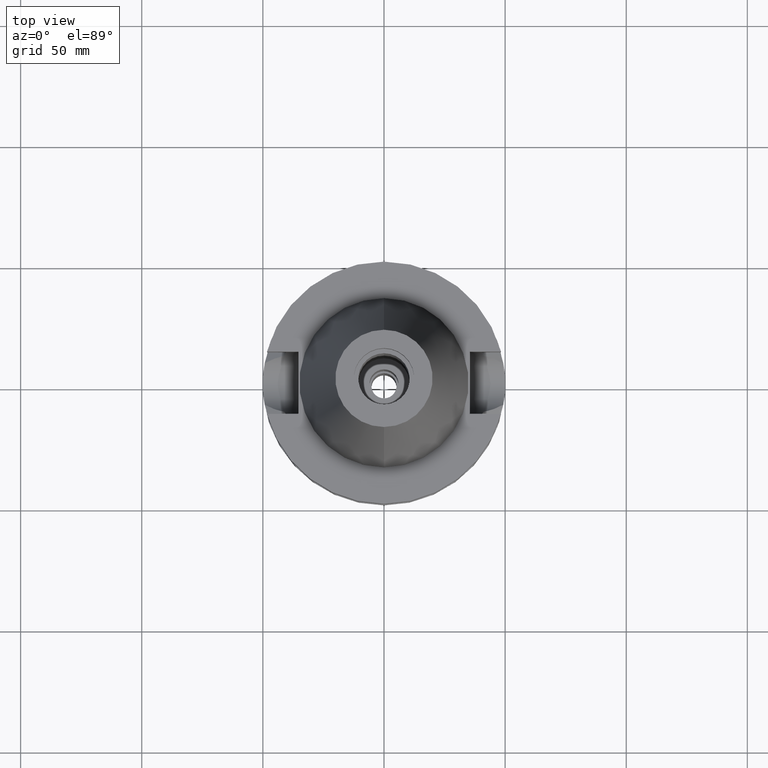
[diagram: clean part render]
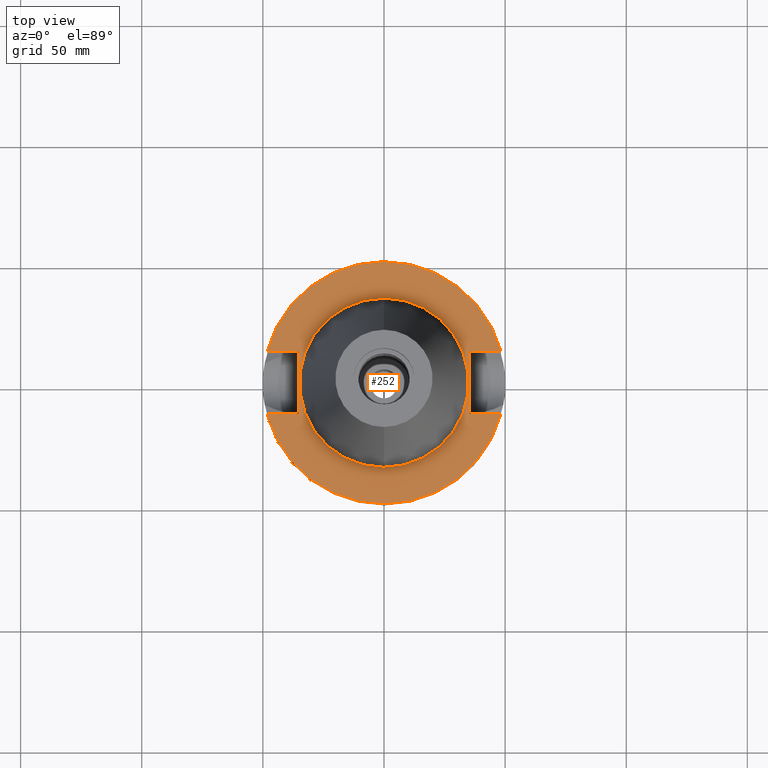
[diagram: same view with one face highlighted and labeled with its STEP entity id]
A machine part, top view. The second image highlights one B-rep face of the part: STEP entity #252.
In plain terms, the highlighted planar face has unit normal (0, 0, -1).
Its self-contained STEP definition (entity closure, byte-faithful):
#27 = DIRECTION ( 'NONE',  ( -1.000000000000000000, 0.0000000000000000000, 0.0000000000000000000 ) ) ;
#45 = DIRECTION ( 'NONE',  ( 0.0000000000000000000, -1.000000000000000000, 0.0000000000000000000 ) ) ;
#167 = CARTESIAN_POINT ( 'NONE',  ( 35.39999999999999858, -12.84999999999999964, -1.500000000000000000 ) ) ;
#213 = EDGE_CURVE ( 'NONE', #419, #2035, #2822, .T. ) ;
#236 = CARTESIAN_POINT ( 'NONE',  ( 48.32057015392000210, -12.84999999999999964, -1.500000000000000000 ) ) ;
#252 = ADVANCED_FACE ( 'NONE', ( #2999, #2584 ), #1859, .F. ) ;
#267 = DIRECTION ( 'NONE',  ( 0.0000000000000000000, 0.0000000000000000000, 1.000000000000000000 ) ) ;
#270 = VERTEX_POINT ( 'NONE', #2337 ) ;
#295 = CARTESIAN_POINT ( 'NONE',  ( -35.39999999999999858, 12.84999999999999964, -1.500000000000000000 ) ) ;
#332 = DIRECTION ( 'NONE',  ( 0.0000000000000000000, 0.0000000000000000000, -1.000000000000000000 ) ) ;
#341 = ORIENTED_EDGE ( 'NONE', *, *, #1112, .F. ) ;
#367 = CARTESIAN_POINT ( 'NONE',  ( 35.39999999999999858, -12.84999999999999964, -1.500000000000000000 ) ) ;
#374 = CARTESIAN_POINT ( 'NONE',  ( 35.39999999999999858, 12.84999999999999964, -1.500000000000000000 ) ) ;
#419 = VERTEX_POINT ( 'NONE', #1478 ) ;
#486 = CIRCLE ( 'NONE', #2616, 34.92499999999999716 ) ;
#541 = DIRECTION ( 'NONE',  ( -1.000000000000000000, 0.0000000000000000000, 0.0000000000000000000 ) ) ;
#636 = CARTESIAN_POINT ( 'NONE',  ( 35.39999999999999858, 12.84999999999999964, -1.500000000000000000 ) ) ;
#658 = ORIENTED_EDGE ( 'NONE', *, *, #1063, .F. ) ;
#675 = VERTEX_POINT ( 'NONE', #367 ) ;
#680 = EDGE_CURVE ( 'NONE', #675, #1392, #1580, .T. ) ;
#693 = AXIS2_PLACEMENT_3D ( 'NONE', #1408, #267, #1181 ) ;
#764 = EDGE_CURVE ( 'NONE', #1215, #675, #2343, .T. ) ;
#811 = CARTESIAN_POINT ( 'NONE',  ( 0.0000000000000000000, 1.206277097159999845E-14, -1.500000000000000000 ) ) ;
#919 = DIRECTION ( 'NONE',  ( 1.000000000000000000, 0.0000000000000000000, 0.0000000000000000000 ) ) ;
#992 = AXIS2_PLACEMENT_3D ( 'NONE', #811, #332, #2349 ) ;
#1007 = ORIENTED_EDGE ( 'NONE', *, *, #680, .F. ) ;
#1055 = ORIENTED_EDGE ( 'NONE', *, *, #2358, .F. ) ;
#1063 = EDGE_CURVE ( 'NONE', #270, #2696, #486, .T. ) ;
#1112 = EDGE_CURVE ( 'NONE', #1933, #419, #1744, .T. ) ;
#1181 = DIRECTION ( 'NONE',  ( 0.0000000000000000000, 1.000000000000000000, 0.0000000000000000000 ) ) ;
#1197 = VECTOR ( 'NONE', #2188, 1000.000000000000000 ) ;
#1215 = VERTEX_POINT ( 'NONE', #374 ) ;
#1217 = EDGE_CURVE ( 'NONE', #1215, #1756, #2012, .T. ) ;
#1299 = ORIENTED_EDGE ( 'NONE', *, *, #764, .F. ) ;
#1392 = VERTEX_POINT ( 'NONE', #236 ) ;
#1408 = CARTESIAN_POINT ( 'NONE',  ( 0.0000000000000000000, 2.628581889689999696E-14, -1.500000000000000000 ) ) ;
#1445 = ORIENTED_EDGE ( 'NONE', *, *, #1819, .F. ) ;
#1470 = CARTESIAN_POINT ( 'NONE',  ( -48.32057015392000210, -12.84999999999999964, -1.500000000000000000 ) ) ;
#1478 = CARTESIAN_POINT ( 'NONE',  ( -35.39999999999999858, 12.84999999999999964, -1.500000000000000000 ) ) ;
#1510 = CIRCLE ( 'NONE', #693, 34.92499999999999716 ) ;
#1555 = VECTOR ( 'NONE', #919, 1000.000000000000000 ) ;
#1580 = LINE ( 'NONE', #167, #1555 ) ;
#1598 = ORIENTED_EDGE ( 'NONE', *, *, #1217, .T. ) ;
#1623 = DIRECTION ( 'NONE',  ( 0.0000000000000000000, -1.000000000000000000, 0.0000000000000000000 ) ) ;
#1670 = CIRCLE ( 'NONE', #2892, 50.00000000000000000 ) ;
#1727 = DIRECTION ( 'NONE',  ( 0.0000000000000000000, 1.000000000000000000, 0.0000000000000000000 ) ) ;
#1744 = LINE ( 'NONE', #2698, #1197 ) ;
#1756 = VERTEX_POINT ( 'NONE', #2861 ) ;
#1809 = VECTOR ( 'NONE', #2975, 1000.000000000000000 ) ;
#1819 = EDGE_CURVE ( 'NONE', #2696, #270, #1510, .T. ) ;
#1856 = VECTOR ( 'NONE', #541, 1000.000000000000000 ) ;
#1859 = PLANE ( 'NONE',  #992 ) ;
#1933 = VERTEX_POINT ( 'NONE', #2437 ) ;
#1938 = LINE ( 'NONE', #2205, #2525 ) ;
#2012 = LINE ( 'NONE', #2520, #1809 ) ;
#2028 = CARTESIAN_POINT ( 'NONE',  ( 0.0000000000000000000, 2.628581889689999696E-14, -1.500000000000000000 ) ) ;
#2035 = VERTEX_POINT ( 'NONE', #2771 ) ;
#2080 = EDGE_LOOP ( 'NONE', ( #2487, #1055, #1007, #1299, #1598, #3019, #2458, #341 ) ) ;
#2188 = DIRECTION ( 'NONE',  ( 0.0000000000000000000, 1.000000000000000000, 0.0000000000000000000 ) ) ;
#2194 = DIRECTION ( 'NONE',  ( 0.0000000000000000000, 0.0000000000000000000, -1.000000000000000000 ) ) ;
#2205 = CARTESIAN_POINT ( 'NONE',  ( -35.39999999999999858, -12.84999999999999964, -1.500000000000000000 ) ) ;
#2229 = DIRECTION ( 'NONE',  ( 0.0000000000000000000, 0.0000000000000000000, -1.000000000000000000 ) ) ;
#2284 = EDGE_CURVE ( 'NONE', #1933, #3112, #1938, .T. ) ;
#2337 = CARTESIAN_POINT ( 'NONE',  ( 0.0000000000000000000, -34.92499999999999716, -1.500000000000000000 ) ) ;
#2343 = LINE ( 'NONE', #636, #2775 ) ;
#2349 = DIRECTION ( 'NONE',  ( 0.0000000000000000000, -1.000000000000000000, 0.0000000000000000000 ) ) ;
#2357 = DIRECTION ( 'NONE',  ( 0.0000000000000000000, -1.000000000000000000, 0.0000000000000000000 ) ) ;
#2358 = EDGE_CURVE ( 'NONE', #1392, #3112, #1670, .T. ) ;
#2435 = CARTESIAN_POINT ( 'NONE',  ( 0.0000000000000000000, 2.628581889689999696E-14, -1.500000000000000000 ) ) ;
#2437 = CARTESIAN_POINT ( 'NONE',  ( -35.39999999999999858, -12.84999999999999964, -1.500000000000000000 ) ) ;
#2458 = ORIENTED_EDGE ( 'NONE', *, *, #213, .F. ) ;
#2487 = ORIENTED_EDGE ( 'NONE', *, *, #2284, .T. ) ;
#2520 = CARTESIAN_POINT ( 'NONE',  ( 35.39999999999999858, 12.84999999999999964, -1.500000000000000000 ) ) ;
#2525 = VECTOR ( 'NONE', #27, 1000.000000000000000 ) ;
#2584 = FACE_BOUND ( 'NONE', #2659, .T. ) ;
#2616 = AXIS2_PLACEMENT_3D ( 'NONE', #3089, #2837, #1623 ) ;
#2659 = EDGE_LOOP ( 'NONE', ( #1445, #658 ) ) ;
#2675 = CARTESIAN_POINT ( 'NONE',  ( 0.0000000000000000000, 34.92499999999999716, -1.500000000000000000 ) ) ;
#2696 = VERTEX_POINT ( 'NONE', #2675 ) ;
#2698 = CARTESIAN_POINT ( 'NONE',  ( -35.39999999999999858, -12.84999999999999964, -1.500000000000000000 ) ) ;
#2753 = EDGE_CURVE ( 'NONE', #2035, #1756, #2870, .T. ) ;
#2771 = CARTESIAN_POINT ( 'NONE',  ( -48.32057015392000210, 12.84999999999999964, -1.500000000000000000 ) ) ;
#2775 = VECTOR ( 'NONE', #2357, 1000.000000000000000 ) ;
#2820 = AXIS2_PLACEMENT_3D ( 'NONE', #2435, #2194, #1727 ) ;
#2822 = LINE ( 'NONE', #295, #1856 ) ;
#2837 = DIRECTION ( 'NONE',  ( 0.0000000000000000000, 0.0000000000000000000, 1.000000000000000000 ) ) ;
#2861 = CARTESIAN_POINT ( 'NONE',  ( 48.32057015392000210, 12.84999999999999964, -1.500000000000000000 ) ) ;
#2870 = CIRCLE ( 'NONE', #2820, 50.00000000000000000 ) ;
#2892 = AXIS2_PLACEMENT_3D ( 'NONE', #2028, #2229, #45 ) ;
#2975 = DIRECTION ( 'NONE',  ( 1.000000000000000000, 0.0000000000000000000, 0.0000000000000000000 ) ) ;
#2999 = FACE_OUTER_BOUND ( 'NONE', #2080, .T. ) ;
#3019 = ORIENTED_EDGE ( 'NONE', *, *, #2753, .F. ) ;
#3089 = CARTESIAN_POINT ( 'NONE',  ( 0.0000000000000000000, 2.628581889689999696E-14, -1.500000000000000000 ) ) ;
#3112 = VERTEX_POINT ( 'NONE', #1470 ) ;